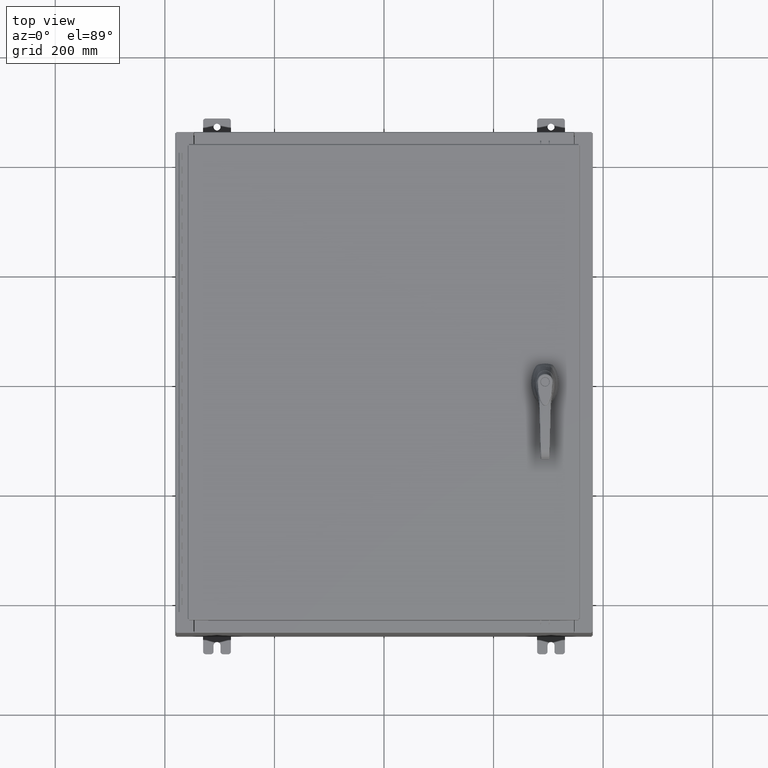
[diagram: clean part render]
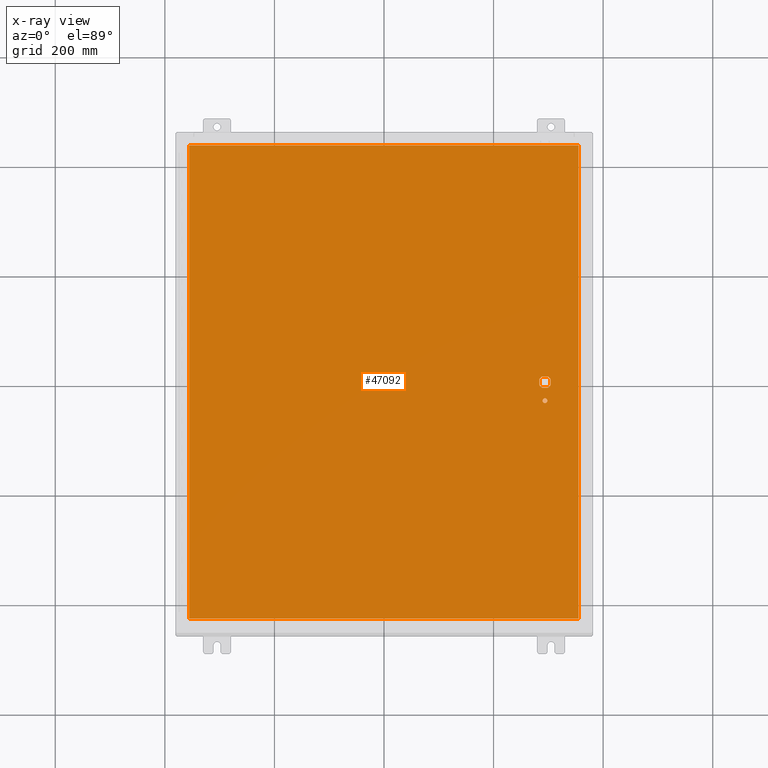
[diagram: x-ray — body ghosted, one internal face saturated and labeled with its STEP entity id]
A machine part, top view, then the same camera in x-ray: the body is ghosted and one INTERNAL B-rep face — a face not visible from any outside direction — is saturated and labeled: STEP entity #47092.
In plain terms, the highlighted planar face has unit normal (0, 0, -1).
Its self-contained STEP definition (entity closure, byte-faithful):
#928 = CARTESIAN_POINT ( 'NONE',  ( 11.77822737075630300, -0.4029999999999252000, -0.07470000000000003000 ) ) ;
#1718 = CARTESIAN_POINT ( 'NONE',  ( 11.37777262924368300, 0.4029999999999252000, -0.07470000000000003000 ) ) ;
#3035 = CARTESIAN_POINT ( 'NONE',  ( -13.99030000000000700, -17.00630000000000000, -0.07470000000000000300 ) ) ;
#3142 = EDGE_CURVE ( 'NONE', #72166, #61588, #24750, .T. ) ;
#6172 = ORIENTED_EDGE ( 'NONE', *, *, #3142, .T. ) ;
#7958 = CARTESIAN_POINT ( 'NONE',  ( 11.37777262924368300, -0.4029999999999250300, -0.07470000000000003000 ) ) ;
#8082 = LINE ( 'NONE', #47411, #11103 ) ;
#8332 = CARTESIAN_POINT ( 'NONE',  ( 11.17500000000006600, 0.2002273707563075900, -0.07470000000000003000 ) ) ;
#8417 = DIRECTION ( 'NONE',  ( -1.000000000000000000, -5.329070518200740300E-015, 0.0000000000000000000 ) ) ;
#9217 = VERTEX_POINT ( 'NONE', #74841 ) ;
#9375 = ORIENTED_EDGE ( 'NONE', *, *, #115461, .F. ) ;
#10625 = LINE ( 'NONE', #95877, #84157 ) ;
#11103 = VECTOR ( 'NONE', #28118, 39.37007874015748100 ) ;
#12043 = VERTEX_POINT ( 'NONE', #7958 ) ;
#12135 = DIRECTION ( 'NONE',  ( -0.0000000000000000000, -0.0000000000000000000, 1.000000000000000000 ) ) ;
#14351 = DIRECTION ( 'NONE',  ( -1.000000000000000000, -1.776356839400246700E-015, 0.0000000000000000000 ) ) ;
#14417 = EDGE_CURVE ( 'NONE', #102859, #12043, #19941, .T. ) ;
#14845 = VECTOR ( 'NONE', #83042, 39.37007874015748100 ) ;
#16310 = LINE ( 'NONE', #16772, #109330 ) ;
#16772 = CARTESIAN_POINT ( 'NONE',  ( 0.0000000000000000000, -0.4029999999999252000, -0.07470000000000003000 ) ) ;
#17651 = DIRECTION ( 'NONE',  ( 0.0000000000000000000, 1.000000000000000000, 0.0000000000000000000 ) ) ;
#18085 = CARTESIAN_POINT ( 'NONE',  ( 11.57799999999999400, -1.338000000000000100, -0.07470000000000003000 ) ) ;
#19140 = VERTEX_POINT ( 'NONE', #3035 ) ;
#19723 = EDGE_LOOP ( 'NONE', ( #54216, #40037, #9375, #69869 ) ) ;
#19941 = CIRCLE ( 'NONE', #53395, 0.4499999999999168000 ) ;
#20590 = VERTEX_POINT ( 'NONE', #44291 ) ;
#21112 = DIRECTION ( 'NONE',  ( 0.0000000000000000000, -1.000000000000000000, 0.0000000000000000000 ) ) ;
#21140 = VERTEX_POINT ( 'NONE', #40790 ) ;
#24373 = ORIENTED_EDGE ( 'NONE', *, *, #45996, .T. ) ;
#24750 = CIRCLE ( 'NONE', #71919, 0.1715000000000011500 ) ;
#25149 = LINE ( 'NONE', #64240, #47653 ) ;
#25579 = CARTESIAN_POINT ( 'NONE',  ( -13.99030000000000700, 17.00630000000000000, -0.07470000000000019700 ) ) ;
#26202 = CARTESIAN_POINT ( 'NONE',  ( 11.98099999999992000, 6.538620706741751200E-014, -0.07470000000000003000 ) ) ;
#27076 = DIRECTION ( 'NONE',  ( -0.0000000000000000000, -0.0000000000000000000, 1.000000000000000000 ) ) ;
#27827 = CIRCLE ( 'NONE', #112935, 0.1715000000000011500 ) ;
#28118 = DIRECTION ( 'NONE',  ( 1.000000000000000000, -0.0000000000000000000, -0.0000000000000000000 ) ) ;
#29591 = AXIS2_PLACEMENT_3D ( 'NONE', #41049, #108172, #50672 ) ;
#30198 = DIRECTION ( 'NONE',  ( -1.000000000000000000, 0.0000000000000000000, 0.0000000000000000000 ) ) ;
#30536 = ORIENTED_EDGE ( 'NONE', *, *, #32001, .T. ) ;
#31801 = DIRECTION ( 'NONE',  ( -0.0000000000000000000, -0.0000000000000000000, 1.000000000000000000 ) ) ;
#32001 = EDGE_CURVE ( 'NONE', #21140, #113633, #10625, .T. ) ;
#34499 = CARTESIAN_POINT ( 'NONE',  ( 11.98099999999992000, 0.2002273707563075900, -0.07470000000000003000 ) ) ;
#38389 = DIRECTION ( 'NONE',  ( -1.000000000000000000, 0.0000000000000000000, 0.0000000000000000000 ) ) ;
#40037 = ORIENTED_EDGE ( 'NONE', *, *, #91693, .F. ) ;
#40790 = CARTESIAN_POINT ( 'NONE',  ( 11.77822737075630300, 0.4029999999999250300, -0.07470000000000003000 ) ) ;
#41049 = CARTESIAN_POINT ( 'NONE',  ( 11.57799999999999400, 0.0000000000000000000, -0.07470000000000003000 ) ) ;
#42721 = DIRECTION ( 'NONE',  ( 0.0000000000000000000, 0.0000000000000000000, -1.000000000000000000 ) ) ;
#44291 = CARTESIAN_POINT ( 'NONE',  ( 13.99029999999999200, 17.00630000000000300, -0.07470000000000000300 ) ) ;
#45808 = ORIENTED_EDGE ( 'NONE', *, *, #104674, .T. ) ;
#45996 = EDGE_CURVE ( 'NONE', #86925, #86975, #77818, .T. ) ;
#46109 = LINE ( 'NONE', #78568, #97174 ) ;
#47092 = ADVANCED_FACE ( 'NONE', ( #65611, #122720, #91194 ), #90136, .T. ) ;
#47411 = CARTESIAN_POINT ( 'NONE',  ( -13.99030000000000700, -17.00630000000000000, -0.07470000000000019700 ) ) ;
#47653 = VECTOR ( 'NONE', #121763, 39.37007874015748100 ) ;
#49632 = AXIS2_PLACEMENT_3D ( 'NONE', #69570, #12135, #79246 ) ;
#50188 = LINE ( 'NONE', #75070, #101254 ) ;
#50672 = DIRECTION ( 'NONE',  ( -1.000000000000000000, -1.776356839400246700E-015, 0.0000000000000000000 ) ) ;
#51916 = CARTESIAN_POINT ( 'NONE',  ( 0.0000000000000000000, 0.0000000000000000000, -0.07470000000000000300 ) ) ;
#53143 = CARTESIAN_POINT ( 'NONE',  ( 11.40649999999999200, -1.338000000000000100, -0.07470000000000003000 ) ) ;
#53395 = AXIS2_PLACEMENT_3D ( 'NONE', #68905, #83378, #14351 ) ;
#53463 = CIRCLE ( 'NONE', #49632, 0.4499999999999168000 ) ;
#54216 = ORIENTED_EDGE ( 'NONE', *, *, #107432, .F. ) ;
#54357 = EDGE_CURVE ( 'NONE', #12043, #86925, #16310, .T. ) ;
#57916 = EDGE_CURVE ( 'NONE', #84129, #21140, #53463, .T. ) ;
#58461 = AXIS2_PLACEMENT_3D ( 'NONE', #123370, #65834, #8417 ) ;
#60677 = EDGE_LOOP ( 'NONE', ( #6172, #90287 ) ) ;
#61588 = VERTEX_POINT ( 'NONE', #53143 ) ;
#62680 = CIRCLE ( 'NONE', #58461, 0.4499999999999168000 ) ;
#64240 = CARTESIAN_POINT ( 'NONE',  ( 13.99029999999999200, 17.00630000000000300, -0.07470000000000129300 ) ) ;
#64511 = DIRECTION ( 'NONE',  ( 1.000000000000000000, 0.0000000000000000000, 0.0000000000000000000 ) ) ;
#65611 = FACE_BOUND ( 'NONE', #60677, .T. ) ;
#65762 = ORIENTED_EDGE ( 'NONE', *, *, #54357, .T. ) ;
#65834 = DIRECTION ( 'NONE',  ( -0.0000000000000000000, -0.0000000000000000000, 1.000000000000000000 ) ) ;
#65844 = LINE ( 'NONE', #25579, #14845 ) ;
#66586 = ORIENTED_EDGE ( 'NONE', *, *, #97690, .T. ) ;
#68380 = CARTESIAN_POINT ( 'NONE',  ( 11.98099999999992000, -0.2002273707563067300, -0.07470000000000003000 ) ) ;
#68905 = CARTESIAN_POINT ( 'NONE',  ( 11.57799999999999400, 0.0000000000000000000, -0.07470000000000003000 ) ) ;
#69570 = CARTESIAN_POINT ( 'NONE',  ( 11.57799999999999400, 0.0000000000000000000, -0.07470000000000003000 ) ) ;
#69869 = ORIENTED_EDGE ( 'NONE', *, *, #82330, .F. ) ;
#70264 = ORIENTED_EDGE ( 'NONE', *, *, #81226, .F. ) ;
#71919 = AXIS2_PLACEMENT_3D ( 'NONE', #18085, #27076, #30198 ) ;
#72166 = VERTEX_POINT ( 'NONE', #76752 ) ;
#74841 = CARTESIAN_POINT ( 'NONE',  ( 13.99029999999999200, -17.00630000000000000, -0.07470000000000000300 ) ) ;
#75070 = CARTESIAN_POINT ( 'NONE',  ( 13.99029999999999200, -17.00630000000000000, -0.07470000000000019700 ) ) ;
#76752 = CARTESIAN_POINT ( 'NONE',  ( 11.74949999999999400, -1.338000000000000100, -0.07470000000000003000 ) ) ;
#77818 = CIRCLE ( 'NONE', #29591, 0.4499999999999168000 ) ;
#78568 = CARTESIAN_POINT ( 'NONE',  ( 11.17500000000006600, 0.0000000000000000000, -0.07470000000000003000 ) ) ;
#79246 = DIRECTION ( 'NONE',  ( -1.000000000000000000, -5.329070518200740300E-015, 0.0000000000000000000 ) ) ;
#79285 = LINE ( 'NONE', #26202, #82292 ) ;
#79542 = VERTEX_POINT ( 'NONE', #94245 ) ;
#81047 = CARTESIAN_POINT ( 'NONE',  ( 11.17500000000006600, -0.2002273707563079800, -0.07470000000000003000 ) ) ;
#81226 = EDGE_CURVE ( 'NONE', #84129, #86975, #79285, .T. ) ;
#82292 = VECTOR ( 'NONE', #93332, 39.37007874015748100 ) ;
#82330 = EDGE_CURVE ( 'NONE', #20590, #79542, #25149, .T. ) ;
#83042 = DIRECTION ( 'NONE',  ( 0.0000000000000000000, -1.000000000000000000, 0.0000000000000000000 ) ) ;
#83378 = DIRECTION ( 'NONE',  ( -0.0000000000000000000, -0.0000000000000000000, 1.000000000000000000 ) ) ;
#84129 = VERTEX_POINT ( 'NONE', #34499 ) ;
#84157 = VECTOR ( 'NONE', #38389, 39.37007874015748100 ) ;
#86925 = VERTEX_POINT ( 'NONE', #928 ) ;
#86975 = VERTEX_POINT ( 'NONE', #68380 ) ;
#89335 = CARTESIAN_POINT ( 'NONE',  ( 11.57799999999999400, -1.338000000000000100, -0.07470000000000003000 ) ) ;
#90136 = PLANE ( 'NONE',  #114875 ) ;
#90287 = ORIENTED_EDGE ( 'NONE', *, *, #106633, .T. ) ;
#91194 = FACE_BOUND ( 'NONE', #124496, .T. ) ;
#91693 = EDGE_CURVE ( 'NONE', #19140, #9217, #8082, .T. ) ;
#92686 = VERTEX_POINT ( 'NONE', #8332 ) ;
#93332 = DIRECTION ( 'NONE',  ( 5.457491617345625000E-015, -1.000000000000000000, 0.0000000000000000000 ) ) ;
#94245 = CARTESIAN_POINT ( 'NONE',  ( -13.99030000000000700, 17.00630000000000300, -0.07470000000000000300 ) ) ;
#95877 = CARTESIAN_POINT ( 'NONE',  ( 0.0000000000000000000, 0.4029999999999252000, -0.07470000000000003000 ) ) ;
#97174 = VECTOR ( 'NONE', #21112, 39.37007874015748100 ) ;
#97690 = EDGE_CURVE ( 'NONE', #113633, #92686, #62680, .T. ) ;
#98970 = DIRECTION ( 'NONE',  ( -1.000000000000000000, 0.0000000000000000000, 0.0000000000000000000 ) ) ;
#101254 = VECTOR ( 'NONE', #17651, 39.37007874015748100 ) ;
#102111 = ORIENTED_EDGE ( 'NONE', *, *, #14417, .T. ) ;
#102859 = VERTEX_POINT ( 'NONE', #81047 ) ;
#104674 = EDGE_CURVE ( 'NONE', #92686, #102859, #46109, .T. ) ;
#106633 = EDGE_CURVE ( 'NONE', #61588, #72166, #27827, .T. ) ;
#107432 = EDGE_CURVE ( 'NONE', #9217, #20590, #50188, .T. ) ;
#108172 = DIRECTION ( 'NONE',  ( -0.0000000000000000000, -0.0000000000000000000, 1.000000000000000000 ) ) ;
#109330 = VECTOR ( 'NONE', #64511, 39.37007874015748100 ) ;
#109823 = DIRECTION ( 'NONE',  ( -1.000000000000000000, 0.0000000000000000000, -0.0000000000000000000 ) ) ;
#112935 = AXIS2_PLACEMENT_3D ( 'NONE', #89335, #31801, #98970 ) ;
#113633 = VERTEX_POINT ( 'NONE', #1718 ) ;
#114875 = AXIS2_PLACEMENT_3D ( 'NONE', #51916, #42721, #109823 ) ;
#115461 = EDGE_CURVE ( 'NONE', #79542, #19140, #65844, .T. ) ;
#116829 = ORIENTED_EDGE ( 'NONE', *, *, #57916, .T. ) ;
#121763 = DIRECTION ( 'NONE',  ( -1.000000000000000000, -0.0000000000000000000, -0.0000000000000000000 ) ) ;
#122720 = FACE_OUTER_BOUND ( 'NONE', #19723, .T. ) ;
#123370 = CARTESIAN_POINT ( 'NONE',  ( 11.57799999999999400, 0.0000000000000000000, -0.07470000000000003000 ) ) ;
#124496 = EDGE_LOOP ( 'NONE', ( #24373, #70264, #116829, #30536, #66586, #45808, #102111, #65762 ) ) ;